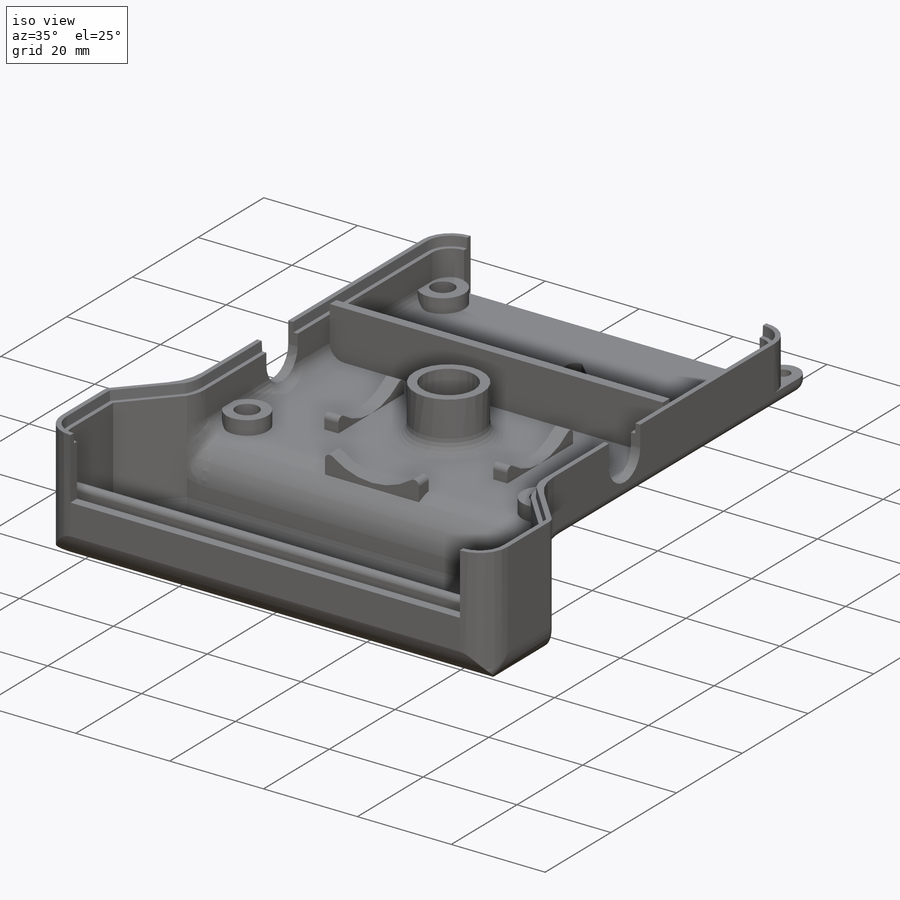
[diagram: iso view]
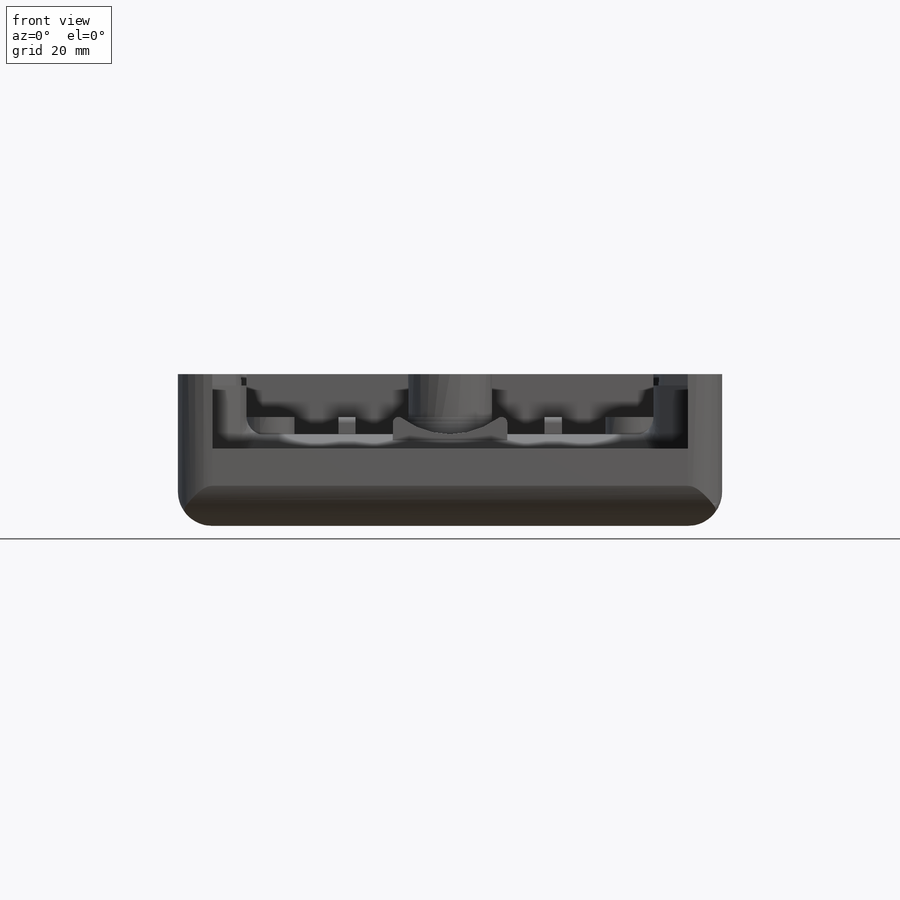
[diagram: front view]
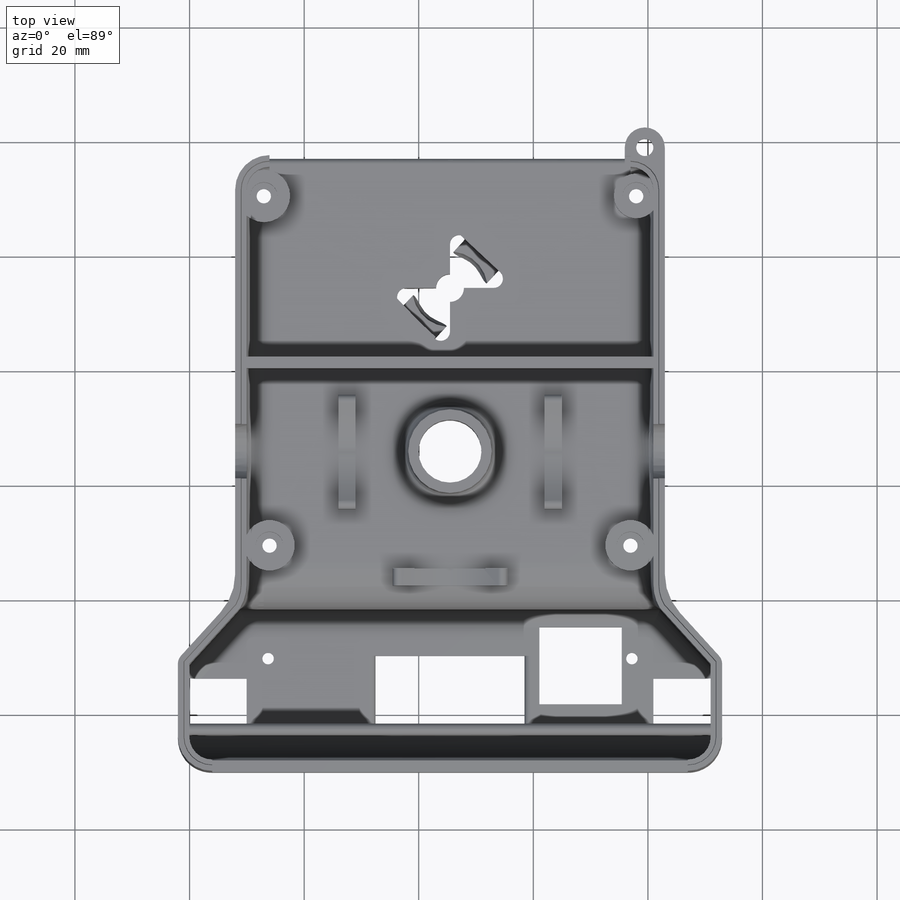
[diagram: top view]
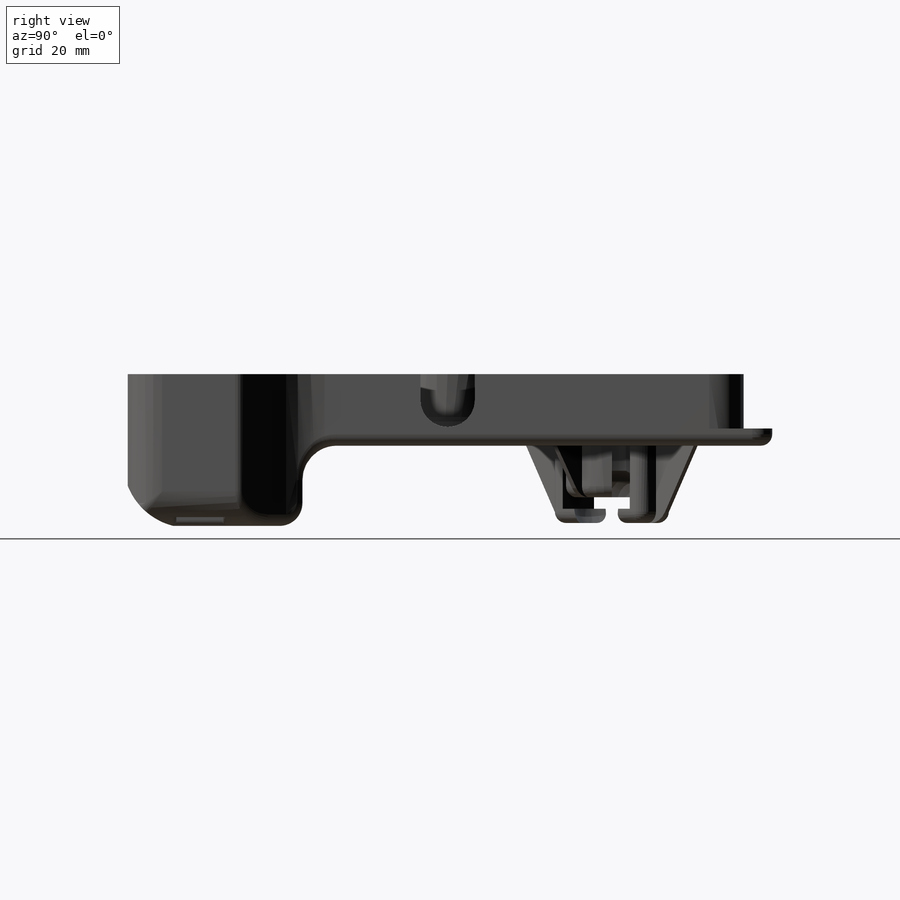
[diagram: right view]
SOLIDWORKS PART (.sldprt)
format: sldprt  version: not decoded by parser v0  size: 4,328,960 bytes
history: native  units: mm
features: sketch x74, extrude x38, fillet x37, cut_extrude x33, material x1, cut_revolve x1 (+17 scaffold rows collapsed; 5 parser-record rows omitted)
feature tree (206):
  scaffold x17  (default folders/planes/origin — collapsed)
  material  "ABS"
  sketch  "Sketch1"  dims[c1.D3=~4.544945mm c1.D1=65.0mm c1.D2=42.0mm c2.D3=0.0mm c2.D4=75.0mm c2.D5=22.0mm c2.D1=15.0mm]
  extrude  "Main Body Plate"  Depth=2mm
  parser-record x5  (decoder bookkeeping rows leaked as tree rows — omitted from the tree; the rows remain in map.json)
  sketch  "Sketch2"  dims[c1.D1=2.0mm c1.D2=3.0mm c1.D3=20.0mm c1.D4=18.5mm c1.D5=~57.203651mm c1.D6=42.0mm c2.D5=~44.660358mm c2.D6=5.0mm c2.D7=5.0mm c2.D4=~44.660358mm c3.D4=90.0deg c4.D4=18.0mm c4.D7=4.0mm]
  extrude  "Boss-Extrude2"  Depth=10.5mm
  sketch  "Sketch4"  dims[c1.D1=1.0mm c1.D2=7.5mm c2.D1=2.0mm c2.D2=~10.756271mm c3.D1=~23.147816mm c3.D2=9.0mm c3.D3=3.0mm c4.D1=3.0mm c5.D1=0.0deg c6.D1=28.0mm]
  cut_extrude  "Cut-Extrude3"  Depth=7mm
  sketch  "Sketch3"  dims[D1=28.0mm D3=9.5mm D2=6.0mm D4=6.0mm]
  cut_extrude  "Cut-Extrude5"  [1 undecoded]
  cut_extrude  "Cut-Extrude63"  [1 undecoded]
  sketch  "Sketch3<12>"
  sketch  "Sketch14"  dims[D3=28.0mm D1=9.5mm D2=11.5mm]
  extrude  "Boss-Extrude16"  [1 undecoded]
  sketch  "Sketch66"  dims[c1.D3=28.0mm c1.D1=9.5mm c1.D2=10.0mm c2.D2=90.0deg c3.D2=14.0mm c3.D4=10.0mm c4.D2=11.5mm]
  extrude  "Boss-Extrude57"  [1 undecoded]
  sketch  "Sketch10"  dims[D1=2.0mm D2=10.0mm]
  extrude  "Boss-Extrude12"  Depth=14mm
  sketch  "Sketch11"  dims[c1.D1=2.0mm c1.D2=15.0mm c1.D3=13.0mm c2.D2=84.0mm]
  extrude  "Boss-Extrude13"  Depth=22mm
  sketch  "Sketch12"  dims[D1=2.0mm D2=4.5mm D3=2.0mm D4=2.0mm D5=2.0mm]
  extrude  "Boss-Extrude14"  Depth=11.5mm
  sketch  "Sketch8"  dims[c1.D1=2.0mm c1.D2=2.0mm c1.D3=2.0mm c1.D4=2.0mm c2.D1=2.0mm c2.D2=2.0mm c2.D3=~35.240453mm c3.D3=~178.939702deg c4.D3=2.0mm]
  extrude  "Outer Shell"  [1 undecoded]
  sketch  "Sketch9"  dims[D1=1.8mm]
  extrude  "Main Tube"  [1 undecoded]
  cut_extrude  "Cut-Extrude33"  [1 undecoded]
  sketch  "Sketch9<2>"
  sketch  "Sketch16"  dims[c1.D1=2.0mm c1.D2=2.0mm c2.D2=90.0deg c3.D2=~17.313706mm c4.D2=30.0deg c4.D3=8.0mm c5.D2=3.0mm c5.D4=19.0mm c5.D5=16.0mm c5.D1=23.0mm]
  sketch  "Sketch18"  dims[c1.D3=8.0mm c1.D2=~3.541751mm c2.D2=90.0deg c2.D4=23.0mm c2.D1=2.0]
  extrude  "Boss-Extrude23"  Depth=11mm
  extrude  "Boss-Extrude29"  Depth=10.5mm
  sketch  "Sketch21"  dims[c1.D1=5.0mm c1.D2=3.0mm c2.D1=8.0mm]
  extrude  "Boss-Extrude30"  Depth=3mm
  sketch  "Sketch28"  dims[D1=2.0mm]
  cut_extrude  "Cut-Extrude12"  [1 undecoded]
  sketch  "Sketch20"  dims[D2=6.604mm D1=13.208mm]
  cut_revolve  "Cut-Revolve1"  Angle=360deg
  cut_extrude  "Cut-Extrude8"  [1 undecoded]
  sketch  "Sketch16<8>"
  extrude  "Boss-Extrude68"  [1 undecoded]
  sketch  "Sketch12<3>"
  sketch  "Sketch54"  dims[D1=25.0mm D2=5.0mm]
  fillet  "Fillet11"  Radius=6mm
  sketch  "Sketch79"  dims[D1=11.0mm]
  cut_extrude  "Cut-Extrude36"  [1 undecoded]
  sketch  "Sketch80"  dims[D1=2.0mm]
  extrude  "Boss-Extrude70"  [1 undecoded]
  fillet  "Fillet26"  Radius=6mm
  fillet  "Fillet28"  Radius=4mm
  sketch  "Sketch53"  dims[D1=26.0mm D2=10.0mm D3=8.0mm D4=2.0mm D5=12.0mm]
  cut_extrude  "Cut-Extrude19"  [1 undecoded]
  sketch  "Sketch68"
  extrude  "Boss-Extrude58"  [1 undecoded]
  sketch  "Sketch71"  dims[D1=2.0mm D2=2.0mm D3=2.0mm D4=2.0mm D5=9.5mm]
  extrude  "Boss-Extrude63"  [1 undecoded]
  sketch  "Sketch72"  dims[D1=24.0mm]
  extrude  "Boss-Extrude64"  Depth=10mm
  fillet  "Fillet33"  Radius=6mm
  fillet  "Fillet35"  Radius=2mm
  sketch  "Sketch78"  dims[D1=14.0mm D2=3.0mm]
  extrude  "Boss-Extrude69"  Depth=15mm
  sketch  "Sketch99"
  extrude  "Boss-Extrude77"  Depth=5.17mm
  sketch  "Sketch100"
  extrude  "Boss-Extrude78"  Depth=3mm
  sketch  "Sketch73"  dims[D1=~12.048647mm]
  cut_extrude  "Cut-Extrude34"  [1 undecoded]
  sketch  "Sketch101"  dims[D1=9.0mm D2=11.5mm]
  cut_extrude  "Cut-Extrude48"  [1 undecoded]
  fillet  "Fillet36"  Radius=4mm
  fillet  "Fillet37"  Radius=3mm
  fillet  "Fillet38"  Radius=3mm
  fillet  "Fillet39"  Radius=3mm
  fillet  "Fillet41"  Radius=8mm
  fillet  "Fillet44"  Radius=3mm
  fillet  "Fillet45"  Radius=10mm
  fillet  "Fillet47"  Radius=3mm
  fillet  "Fillet48"  Radius=5mm
  fillet  "Fillet50"  Radius=4mm
  sketch  "Sketch84"  dims[D1=10.0mm D2=10.0mm D3=10.0mm D4=10.0mm D5=4.0mm]
  sketch  "Sketch90"  dims[D1=2.0mm D2=14.5mm D3=33.0mm]
  extrude  "Boss-Extrude72"  [1 undecoded]
  sketch  "Sketch91"  dims[D1=3.0mm D2=2.0mm]
  extrude  "Boss-Extrude73"  Depth=3mm
  sketch  "Sketch92"  dims[D1=2.0mm]
  cut_extrude  "Cut-Extrude43"  Depth=9mm
  sketch  "Sketch93"  dims[D1=2.0mm D2=1.5mm D3=3.0mm]
  extrude  "Boss-Extrude74"  Depth=10mm
  sketch  "Sketch94"  dims[D1=1.5mm]
  extrude  "Boss-Extrude75"  Depth=2mm
  sketch  "Sketch95"  dims[D1=0.5mm D2=0.5mm]
  cut_extrude  "Cut-Extrude44"  [1 undecoded]
  fillet  "Fillet53"  Radius=2mm
  sketch  "Sketch96"  dims[c1.D1=6.0mm c1.D2=4.8mm c1.D3=6.0mm c1.D4=6.0mm c1.D5=6.0mm c1.D6=1.5mm c1.D7=6.0mm c2.D1=4.5mm c2.D6=4.5mm c2.D7=2.5mm c2.D9=2.0mm c3.D1=8.8mm c3.D9=4.8mm c4.D1=1.5mm c4.D2=~9.717007mm c4.D3=2.0mm c4.D4=3.1mm c4.D5=3.1mm c5.D4=68.0mm c5.D5=8.0mm c5.D7=~5.02248mm c6.D4=61.0mm c6.D8=14.0mm c6.D6=2.0mm c6.D5=6.0mm c6.D1=5.0mm c7.D6=7.0mm c7.D9=1.5mm c7.D1=65.0mm]
  extrude  "Boss-Extrude76"  Depth=3mm
  fillet  "Fillet63"  Radius=2mm
  fillet  "Fillet64"  Radius=2mm
  fillet  "Fillet65"  Radius=2mm
  fillet  "Fillet71"  Radius=2mm
  fillet  "Fillet73"  Radius=3mm
  fillet  "Fillet77"  Radius=1mm
  fillet  "Fillet78"  Radius=1mm
  fillet  "Fillet79"  Radius=1mm
  fillet  "Fillet80"  Radius=1mm
  fillet  "Fillet81"  Radius=1mm
  fillet  "Fillet82"  Radius=1mm
  fillet  "Fillet85"  Radius=0.9mm
  fillet  "Fillet86"  Radius=1mm
  fillet  "Fillet87"  Radius=1mm
  fillet  "Fillet88"  Radius=1mm
  fillet  "Fillet89"  Radius=1mm
  fillet  "Fillet91"  Radius=1mm
  fillet  "Fillet93"  Radius=1mm
  fillet  "Fillet97"  Radius=1mm
  fillet  "Fillet98"  Radius=0.5mm
  sketch  "Sketch111"
  extrude  "Boss-Extrude83"  Depth=5mm
  sketch  "Sketch112"
  cut_extrude  "Cut-Extrude53"  [1 undecoded]
  sketch  "Sketch114"
  extrude  "Boss-Extrude84"  Depth=2mm
  sketch  "Sketch115"
  cut_extrude  "Cut-Extrude54"  Depth=4mm
  sketch  "Sketch116"
  cut_extrude  "Cut-Extrude56"  Depth=4mm
  sketch  "Sketch117"
  extrude  "Boss-Extrude85"  Depth=8mm
  sketch  "Sketch118"
  cut_extrude  "Cut-Extrude57"  Depth=8mm
  cut_extrude  "Cut-Extrude58"  [1 undecoded]
  sketch  "Sketch96<13>"  dims[D2=8.0mm]
  extrude  "Boss-Extrude86"  [1 undecoded]
  sketch  "Sketch96<14>"  dims[D1=1.0mm]
  cut_extrude  "Cut-Extrude59"  [1 undecoded]
  sketch  "Sketch96<15>"  dims[D1=130.0mm D2=10.0mm]
  sketch  "Sketch121"
  extrude  "Boss-Extrude87"  [1 undecoded]
  sketch  "Sketch122"  dims[D1=0.0mm]
  extrude  "Boss-Extrude88"  [1 undecoded]
  sketch  "Sketch123"  dims[D1=35.0mm]
  cut_extrude  "Cut-Extrude60"  Depth=10mm
  sketch  "Sketch124"  dims[D1=9.5mm]
  cut_extrude  "Cut-Extrude61"  [1 undecoded]
  extrude  "Boss-Extrude89"  [1 undecoded]
  sketch  "Sketch96<16>"  dims[D1=1.3mm]
  sketch  "Sketch126"  dims[D1=0.0mm D2=0.0mm D3=0.0mm D4=0.0mm]
  cut_extrude  "Cut-Extrude62"  Depth=0.5mm
  sketch  "Sketch127"  dims[D2=2.5mm D1=0.0mm]
  sketch  "Sketch128"
  extrude  "Boss-Extrude90"  [1 undecoded]
  extrude  "Boss-Extrude91"  Depth=4mm
  sketch  "Sketch129"
  cut_extrude  "Cut-Extrude64"  Depth=16mm
  sketch  "Sketch130"  dims[D1=1.0mm D2=8.0mm D4=1.0mm D5=12.0mm D3=2.0]
  extrude  "Boss-Extrude92"  [1 undecoded]
  extrude  "Boss-Extrude93"  [1 undecoded]
  sketch  "Sketch130<3>"
  sketch  "Sketch131"
  cut_extrude  "Cut-Extrude65"  [1 undecoded]
  sketch  "Sketch133"
  cut_extrude  "Cut-Extrude66"  Depth=16mm
  sketch  "Sketch134"  dims[D1=2.0mm D2=63.5mm]
  cut_extrude  "Cut-Extrude67"  [1 undecoded]
  cut_extrude  "Cut-Extrude68"  [1 undecoded]
  sketch  "Sketch96<17>"  dims[D1=17.0mm]
  cut_extrude  "Cut-Extrude69"  [1 undecoded]
  sketch  "Sketch96<18>"  dims[D1=17.0mm]
  sketch  "Sketch135"  dims[D1=4.0mm]
  cut_extrude  "Cut-Extrude70"  Depth=1.5mm
  sketch  "Sketch136"  dims[D1=4.0mm]
  cut_extrude  "Cut-Extrude71"  Depth=1mm
  extrude  "Boss-Extrude94"  [1 undecoded]
  sketch  "Sketch96<19>"  dims[D1=0.5mm]
  sketch  "Sketch137"  dims[D1=28.0mm]
  cut_extrude  "Cut-Extrude72"  [1 undecoded]
  fillet  "Fillet99"  Radius=1mm
  sketch  "Sketch138"
  cut_extrude  "Cut-Extrude73"  [1 undecoded]
  sketch  "Sketch139"  dims[D1=0.0mm]
  cut_extrude  "Cut-Extrude74"  Depth=2mm
  sketch  "Sketch140"  dims[D1=0.0mm]
  extrude  "Boss-Extrude95"  Depth=2mm GrooveHeight=2mm GrooveWidth=1mm GrooveDraftAngle=3deg
  sketch  "Sketch142"
  cut_extrude  "Cut-Extrude76"  Depth=9mm
decode coverage: 124 of 183 modeling features carry decoded parameters
note: ~ marks probable driven/reference dimensions
note: 37 parameter values undecoded
summary: no parameter record found for 37 features
note: suppression state not decoded; provenance and decode notes live in map.json
